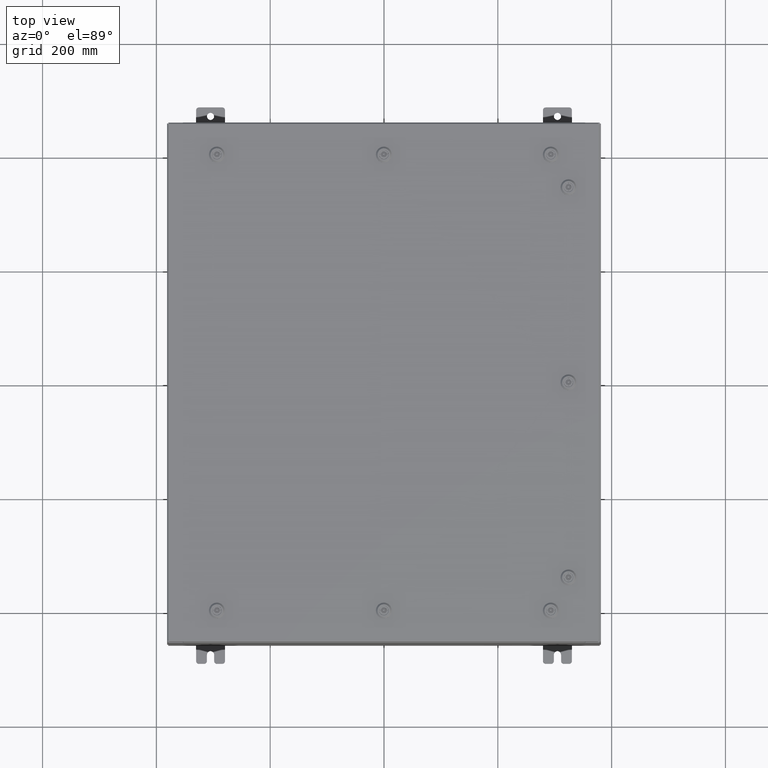
[diagram: clean part render]
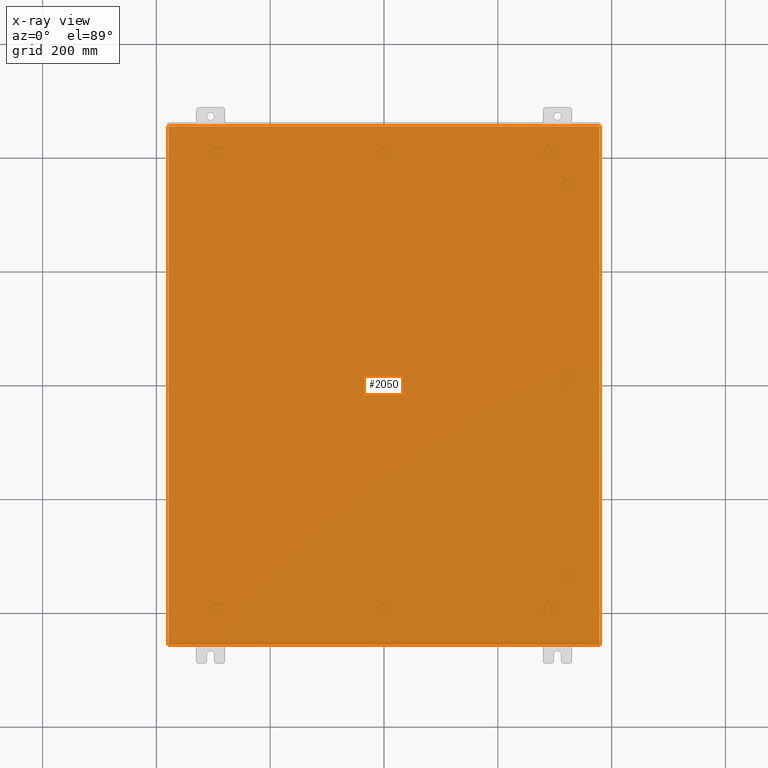
[diagram: x-ray — body ghosted, one internal face saturated and labeled with its STEP entity id]
A machine part, top view, then the same camera in x-ray: the body is ghosted and one INTERNAL B-rep face — a face not visible from any outside direction — is saturated and labeled: STEP entity #2050.
In plain terms, the highlighted planar face has unit normal (0, 0, -1).
Its self-contained STEP definition (entity closure, byte-faithful):
#687 = EDGE_CURVE ( 'NONE', #64638, #12210, #26038, .T. ) ;
#688 = PLANE ( 'NONE',  #48002 ) ;
#2050 = ADVANCED_FACE ( 'NONE', ( #16406 ), #688, .F. ) ;
#2721 = VECTOR ( 'NONE', #56732, 39.37007874015748100 ) ;
#5425 = ORIENTED_EDGE ( 'NONE', *, *, #52588, .F. ) ;
#5891 = VECTOR ( 'NONE', #18243, 39.37007874015748100 ) ;
#8368 = VERTEX_POINT ( 'NONE', #53147 ) ;
#9817 = CARTESIAN_POINT ( 'NONE',  ( 14.91229999999999800, -17.92530000000000000, 4.247169927649909300E-016 ) ) ;
#10079 = EDGE_CURVE ( 'NONE', #64638, #42661, #64398, .T. ) ;
#12210 = VERTEX_POINT ( 'NONE', #53209 ) ;
#15520 = DIRECTION ( 'NONE',  ( 0.0000000000000000000, 0.0000000000000000000, -1.000000000000000000 ) ) ;
#16032 = CARTESIAN_POINT ( 'NONE',  ( -15.00000000000000400, -17.92530000000000000, 0.0000000000000000000 ) ) ;
#16406 = FACE_OUTER_BOUND ( 'NONE', #16734, .T. ) ;
#16734 = EDGE_LOOP ( 'NONE', ( #5425, #48916, #19784, #39935 ) ) ;
#18243 = DIRECTION ( 'NONE',  ( -0.0000000000000000000, 1.000000000000000000, -0.0000000000000000000 ) ) ;
#19784 = ORIENTED_EDGE ( 'NONE', *, *, #10079, .F. ) ;
#20972 = LINE ( 'NONE', #53854, #5891 ) ;
#21844 = EDGE_CURVE ( 'NONE', #8368, #42661, #56848, .T. ) ;
#23727 = VECTOR ( 'NONE', #35847, 39.37007874015748100 ) ;
#26038 = LINE ( 'NONE', #65729, #65084 ) ;
#35283 = DIRECTION ( 'NONE',  ( -1.000000000000000000, -0.0000000000000000000, -0.0000000000000000000 ) ) ;
#35847 = DIRECTION ( 'NONE',  ( -0.0000000000000000000, -1.000000000000000000, 8.208677865577646300E-017 ) ) ;
#36340 = DIRECTION ( 'NONE',  ( -1.000000000000000000, 0.0000000000000000000, -0.0000000000000000000 ) ) ;
#38992 = CARTESIAN_POINT ( 'NONE',  ( 14.91229999999999800, 17.92530000000000000, -2.518422369159242700E-015 ) ) ;
#39935 = ORIENTED_EDGE ( 'NONE', *, *, #687, .T. ) ;
#42661 = VERTEX_POINT ( 'NONE', #9817 ) ;
#48002 = AXIS2_PLACEMENT_3D ( 'NONE', #52069, #15520, #36340 ) ;
#48194 = CARTESIAN_POINT ( 'NONE',  ( 14.91229999999999800, 17.92530000000000000, -2.518422369159242700E-015 ) ) ;
#48916 = ORIENTED_EDGE ( 'NONE', *, *, #21844, .T. ) ;
#52069 = CARTESIAN_POINT ( 'NONE',  ( 0.0000000000000000000, 0.0000000000000000000, 0.0000000000000000000 ) ) ;
#52588 = EDGE_CURVE ( 'NONE', #8368, #12210, #20972, .T. ) ;
#53147 = CARTESIAN_POINT ( 'NONE',  ( -14.91230000000000200, -17.92530000000000000, 4.481938114605432000E-017 ) ) ;
#53209 = CARTESIAN_POINT ( 'NONE',  ( -14.91230000000000200, 17.92530000000000000, 4.481938114605432000E-017 ) ) ;
#53854 = CARTESIAN_POINT ( 'NONE',  ( -14.91230000000000200, -17.92530000000000000, 4.481938114605432000E-017 ) ) ;
#56732 = DIRECTION ( 'NONE',  ( 1.000000000000000000, 0.0000000000000000000, 0.0000000000000000000 ) ) ;
#56848 = LINE ( 'NONE', #16032, #2721 ) ;
#64398 = LINE ( 'NONE', #38992, #23727 ) ;
#64638 = VERTEX_POINT ( 'NONE', #48194 ) ;
#65084 = VECTOR ( 'NONE', #35283, 39.37007874015748100 ) ;
#65729 = CARTESIAN_POINT ( 'NONE',  ( -15.00000000000000400, 17.92530000000000000, 0.0000000000000000000 ) ) ;